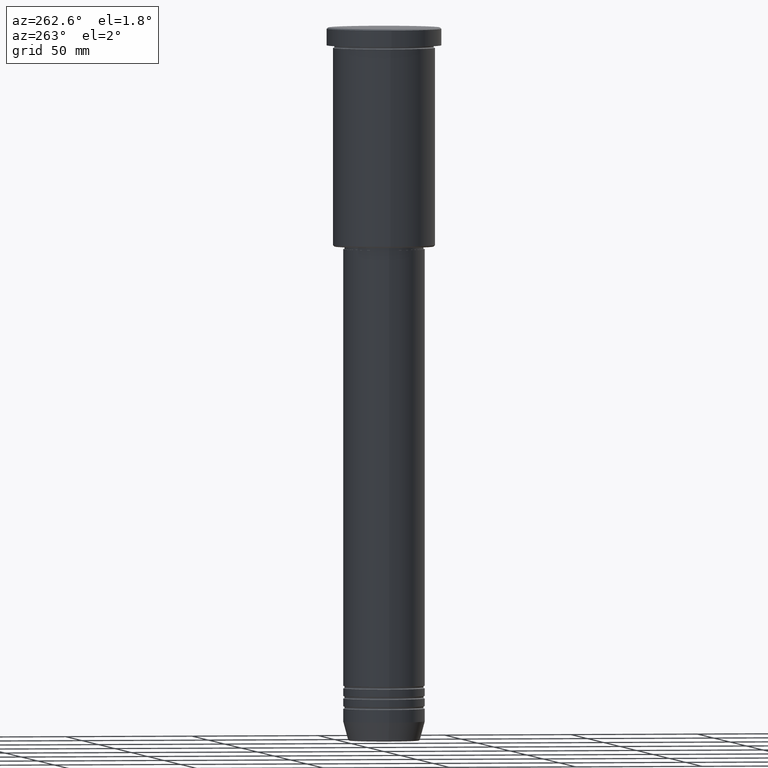
[diagram: clean part render]
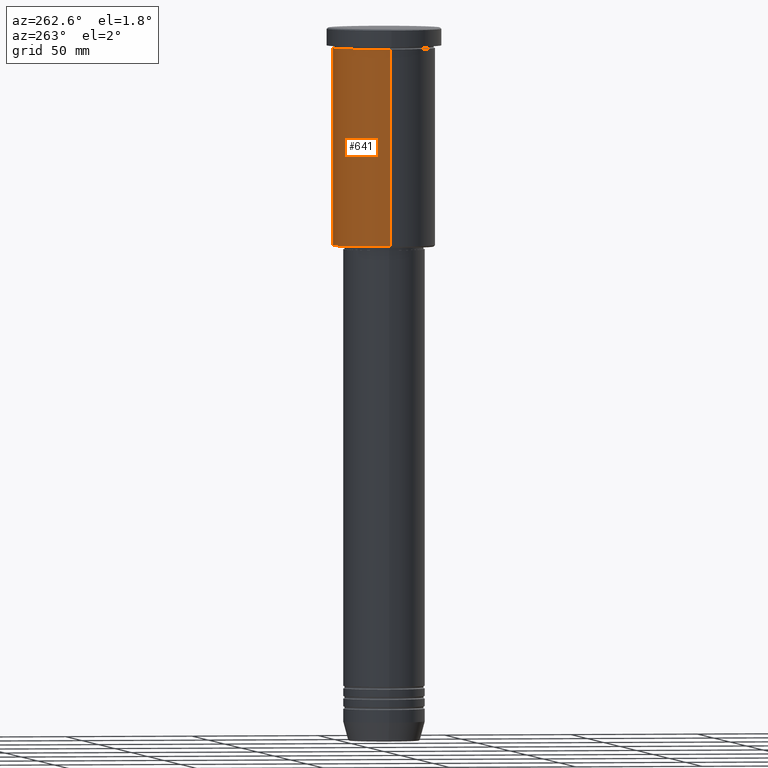
[diagram: same view with one face highlighted and labeled with its STEP entity id]
A machine part, auxiliary view. The second image highlights one B-rep face of the part: STEP entity #641.
In plain terms, the highlighted cylindrical surface (partial cylindrical patch) has radius 20 mm, axis along (-0, -0, 1).
Its self-contained STEP definition (entity closure, byte-faithful):
#46 = FACE_OUTER_BOUND ( 'NONE', #285, .T. ) ;
#91 = DIRECTION ( 'NONE',  ( -0.000000000000000000, -0.000000000000000000, 1.000000000000000000 ) ) ;
#116 = VERTEX_POINT ( 'NONE', #799 ) ;
#179 = CARTESIAN_POINT ( 'NONE',  ( 20.00000000000000000, 0.000000000000000000, -7.999999999999994671 ) ) ;
#238 = DIRECTION ( 'NONE',  ( 1.000000000000000000, 0.000000000000000000, 0.000000000000000000 ) ) ;
#285 = EDGE_LOOP ( 'NONE', ( #777, #837, #415, #690 ) ) ;
#338 = DIRECTION ( 'NONE',  ( -0.000000000000000000, -0.000000000000000000, 1.000000000000000000 ) ) ;
#415 = ORIENTED_EDGE ( 'NONE', *, *, #491, .F. ) ;
#441 = DIRECTION ( 'NONE',  ( -0.000000000000000000, -0.000000000000000000, 1.000000000000000000 ) ) ;
#465 = AXIS2_PLACEMENT_3D ( 'NONE', #633, #338, #706 ) ;
#491 = EDGE_CURVE ( 'NONE', #800, #116, #748, .T. ) ;
#517 = CARTESIAN_POINT ( 'NONE',  ( 20.00000000000000355, 0.000000000000000000, 0.000000000000000000 ) ) ;
#540 = VERTEX_POINT ( 'NONE', #1048 ) ;
#547 = VECTOR ( 'NONE', #91, 1000.000000000000000 ) ;
#570 = LINE ( 'NONE', #999, #547 ) ;
#633 = CARTESIAN_POINT ( 'NONE',  ( 0.000000000000000000, 0.000000000000000000, 0.000000000000000000 ) ) ;
#641 = ADVANCED_FACE ( 'NONE', ( #46 ), #1068, .T. ) ;
#646 = CARTESIAN_POINT ( 'NONE',  ( 0.000000000000000000, 0.000000000000000000, -7.999999999999994671 ) ) ;
#673 = CIRCLE ( 'NONE', #688, 20.00000000000000355 ) ;
#678 = DIRECTION ( 'NONE',  ( -0.000000000000000000, -0.000000000000000000, 1.000000000000000000 ) ) ;
#688 = AXIS2_PLACEMENT_3D ( 'NONE', #773, #678, #1040 ) ;
#690 = ORIENTED_EDGE ( 'NONE', *, *, #1114, .F. ) ;
#706 = DIRECTION ( 'NONE',  ( 1.000000000000000000, 0.000000000000000000, 0.000000000000000000 ) ) ;
#722 = EDGE_CURVE ( 'NONE', #540, #116, #570, .T. ) ;
#748 = CIRCLE ( 'NONE', #1082, 20.00000000000000000 ) ;
#773 = CARTESIAN_POINT ( 'NONE',  ( 0.000000000000000000, 0.000000000000000000, -85.49999999999994316 ) ) ;
#777 = ORIENTED_EDGE ( 'NONE', *, *, #1000, .T. ) ;
#791 = VECTOR ( 'NONE', #441, 1000.000000000000000 ) ;
#799 = CARTESIAN_POINT ( 'NONE',  ( -20.00000000000000000, 2.449293598294706513E-15, -7.999999999999994671 ) ) ;
#800 = VERTEX_POINT ( 'NONE', #179 ) ;
#837 = ORIENTED_EDGE ( 'NONE', *, *, #722, .T. ) ;
#968 = LINE ( 'NONE', #517, #791 ) ;
#999 = CARTESIAN_POINT ( 'NONE',  ( -20.00000000000000355, 2.449293598294706907E-15, 0.000000000000000000 ) ) ;
#1000 = EDGE_CURVE ( 'NONE', #1064, #540, #673, .T. ) ;
#1040 = DIRECTION ( 'NONE',  ( -1.000000000000000000, 0.000000000000000000, 0.000000000000000000 ) ) ;
#1048 = CARTESIAN_POINT ( 'NONE',  ( -20.00000000000000355, 2.449293598294706907E-15, -85.49999999999994316 ) ) ;
#1064 = VERTEX_POINT ( 'NONE', #1151 ) ;
#1068 = CYLINDRICAL_SURFACE ( 'NONE', #465, 20.00000000000000355 ) ;
#1082 = AXIS2_PLACEMENT_3D ( 'NONE', #646, #1092, #238 ) ;
#1092 = DIRECTION ( 'NONE',  ( -0.000000000000000000, -0.000000000000000000, 1.000000000000000000 ) ) ;
#1114 = EDGE_CURVE ( 'NONE', #1064, #800, #968, .T. ) ;
#1151 = CARTESIAN_POINT ( 'NONE',  ( 20.00000000000000355, 0.000000000000000000, -85.49999999999994316 ) ) ;